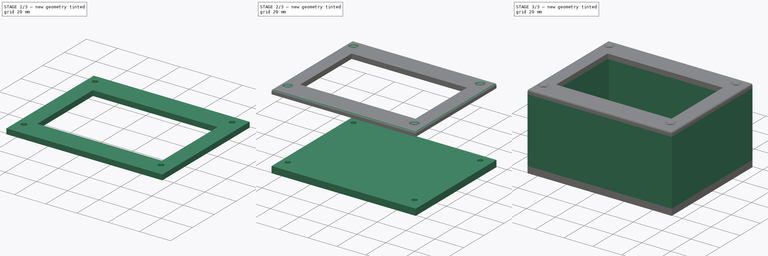
[diagram: build sequence overview — one tinted view per stage of 3, left to right]
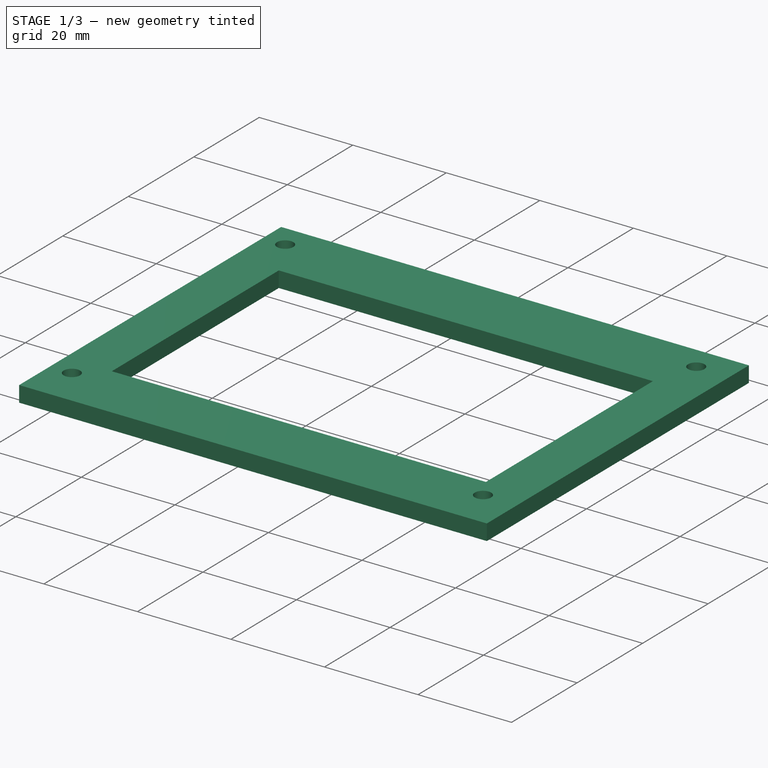
[diagram: stage 1 of 3 — iso view after this stage's code; geometry added in this stage tinted green]
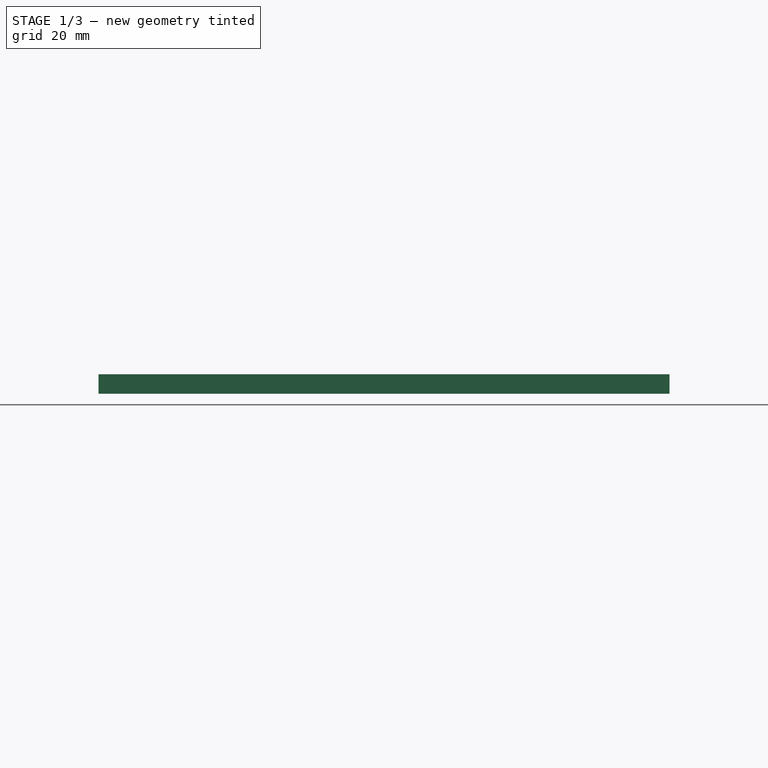
[diagram: stage 1 of 3 — front view after this stage's code; geometry added in this stage tinted green]
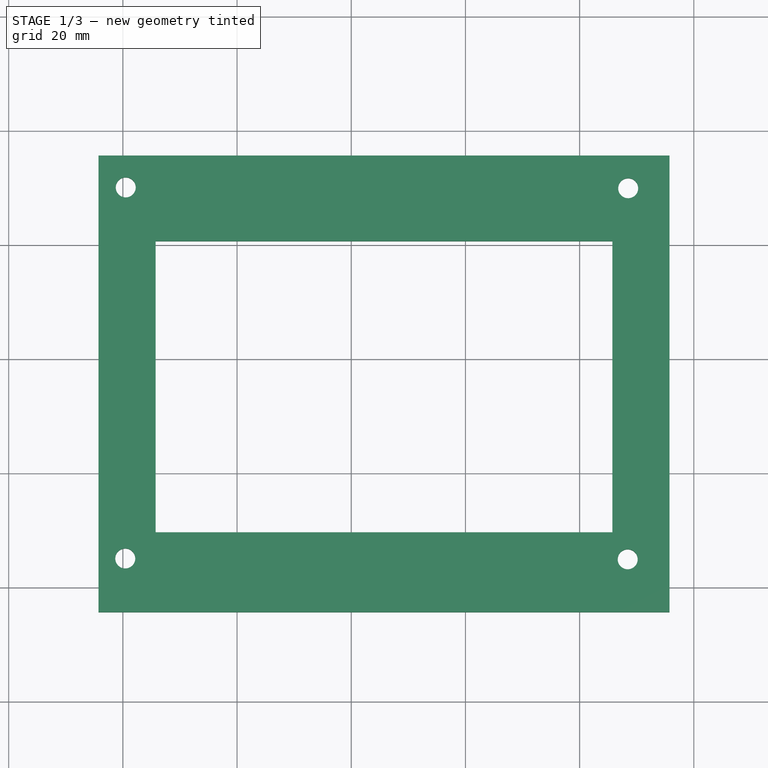
[diagram: stage 1 of 3 — top view after this stage's code; geometry added in this stage tinted green]
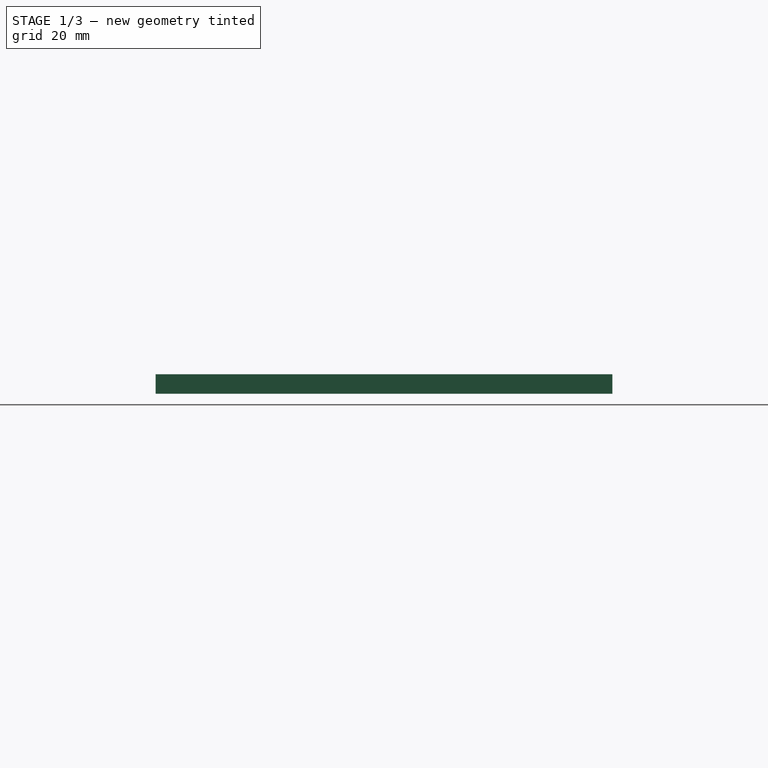
[diagram: stage 1 of 3 — right view after this stage's code; geometry added in this stage tinted green]
FCSTD DOCUMENT  (FreeCAD 0.18R4 (GitTag))
Label: Gabinete
License: All rights reserved
LicenseURL: http://en.wikipedia.org/wiki/All_rights_reserved
objects: Part::Feature×10, App::Part×10, Sketcher::SketchObject×4, PartDesign::Pad×3, PartDesign::Chamfer×2, PartDesign::Body×2, PartDesign::Pocket×1, PartDesign::Fillet×1
note: 27 computed .brp shape members not serialized (recipe doc carries the construction recipe); baked Part::Feature solids carry a one-line shape summary decoded from their .brp

FEATURE [PartDesign::Body] Body001  label="Cuerpo"
  Group = -> [Sketch004,Pad003,Chamfer001,Sketch003,Pad002]
  Origin = -> Origin001
  Tip = -> Pad002
FEATURE [PartDesign::Pad] Pad004
  Length = 3.4
  Length2 = 100
  Placement = pos=(0,0,49.5) rot=(0,0,1;0rad)
  Profile = -> Sketch002
  Type = 0
FEATURE [Sketcher::SketchObject] Sketch
  ExternalGeometry = -> [Pad004]
  MapMode = 5
  Placement = pos=(0,0,52.9) rot=(0,0,1;0rad)
  Support = -> [Pad004]
  sketch-geometry (4):
    g0: LineSegment StartX=-54.2662 StartY=20.6697 StartZ=0 EndX=25.7338 EndY=20.6697 EndZ=0
    g1: LineSegment StartX=25.7338 StartY=20.6697 StartZ=0 EndX=25.7338 EndY=-30.3303 EndZ=0
    g2: LineSegment StartX=25.7338 StartY=-30.3303 StartZ=0 EndX=-54.2662 EndY=-30.3303 EndZ=0
    g3: LineSegment StartX=-54.2662 StartY=-30.3303 StartZ=0 EndX=-54.2662 EndY=20.6697 EndZ=0
  constraints (12):
    c: Coincident(g0,g1)
    c: Coincident(g1,g2)
    c: Coincident(g2,g3)
    c: Coincident(g3,g0)
    c: Horizontal(g0)
    c: Horizontal(g2)
    c: Vertical(g1)
    c: Vertical(g3)
    c: Distance(g2) = 80
    c: Distance(g3) = 51
    c: DistanceX(g0,g-6) = 10
    c: DistanceY(g0,g-6) = 15
FEATURE [PartDesign::Pocket] Pocket
  BaseFeature = -> Pad004
  Length = 5
  Length2 = 100
  Placement = pos=(0,0,49.5) rot=(0,0,1;0rad)
  Profile = -> Sketch
  Type = 0
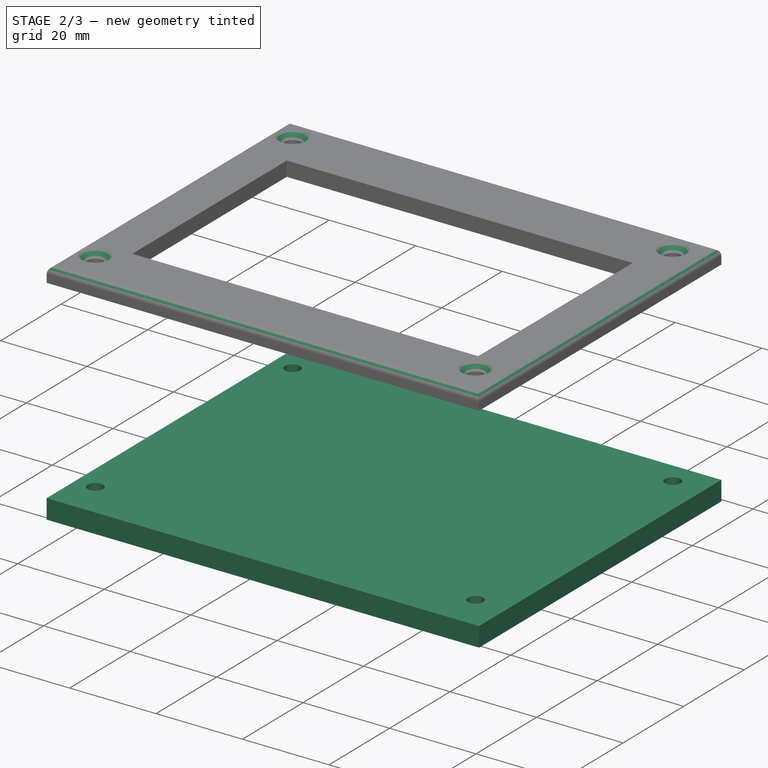
[diagram: stage 2 of 3 — iso view after this stage's code; geometry added in this stage tinted green]
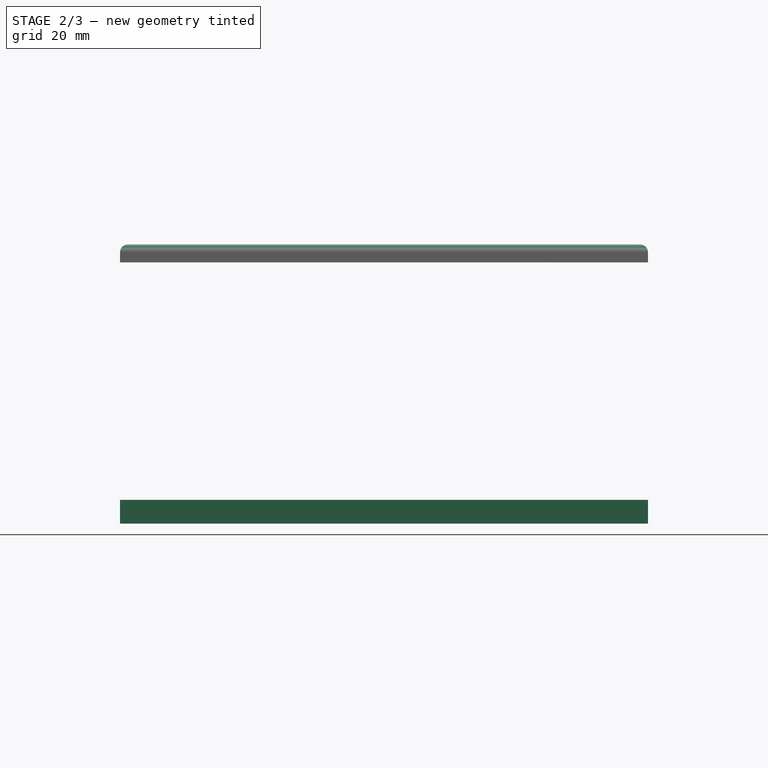
[diagram: stage 2 of 3 — front view after this stage's code; geometry added in this stage tinted green]
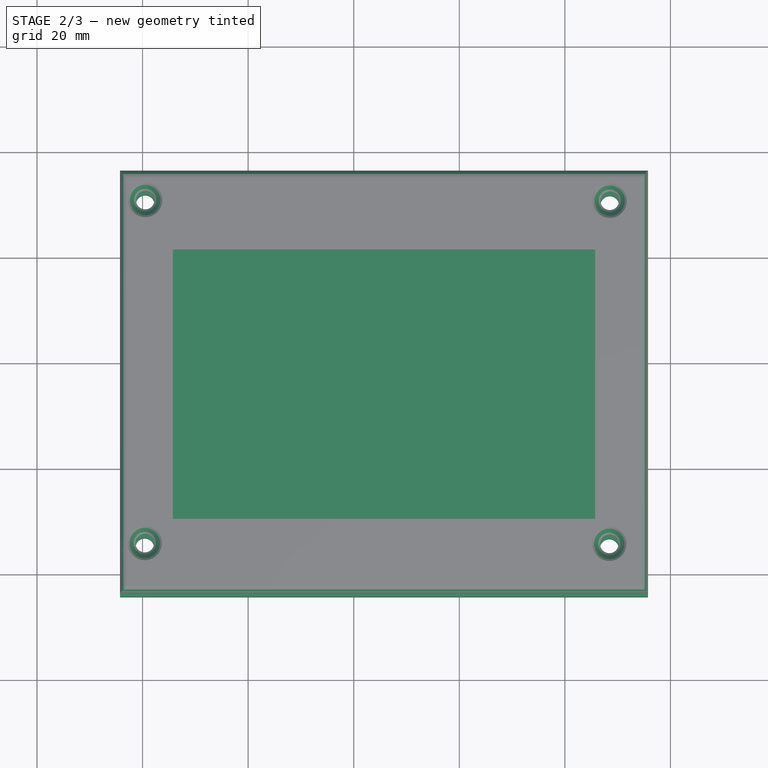
[diagram: stage 2 of 3 — top view after this stage's code; geometry added in this stage tinted green]
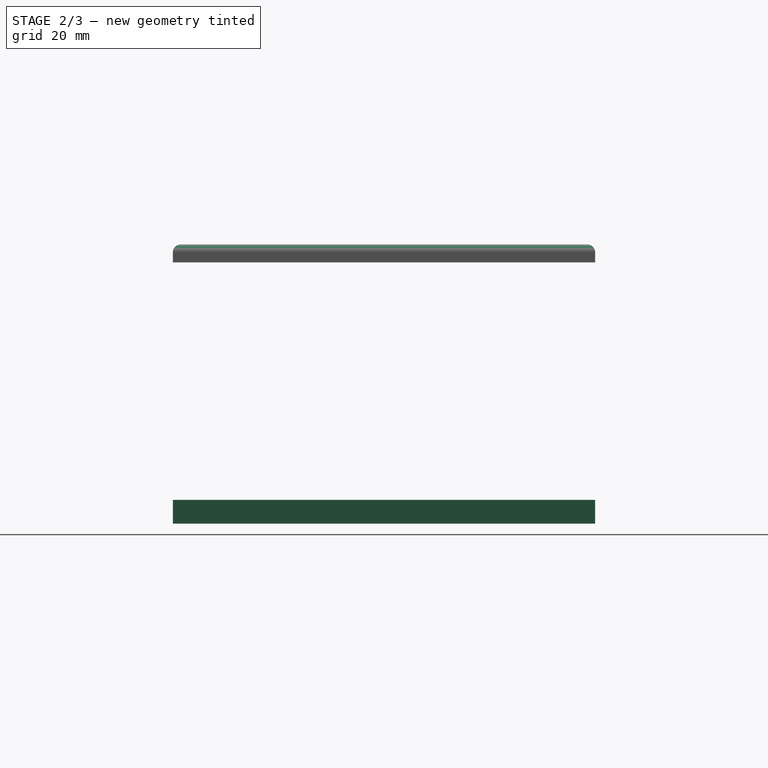
[diagram: stage 2 of 3 — right view after this stage's code; geometry added in this stage tinted green]
FEATURE [Sketcher::SketchObject] Sketch002
  MapMode = 5
  Placement = pos=(0,0,49.5) rot=(0,0,1;0rad)
  sketch-geometry (8):
    g0: LineSegment StartX=-64.2662 StartY=35.6697 StartZ=0 EndX=35.7338 EndY=35.6697 EndZ=0
    g1: LineSegment StartX=35.7338 StartY=35.6697 StartZ=0 EndX=35.7338 EndY=-44.3303 EndZ=0
    g2: LineSegment StartX=35.7338 StartY=-44.3303 StartZ=0 EndX=-64.2662 EndY=-44.3303 EndZ=0
    g3: LineSegment StartX=-64.2662 StartY=-44.3303 StartZ=0 EndX=-64.2662 EndY=35.6697 EndZ=0
    g4: Circle CenterX=-59.4993 CenterY=30.084 CenterZ=0 NormalX=0 NormalY=0 NormalZ=1 AngleXU=0 Radius=1.75
    g5: Circle CenterX=-59.5841 CenterY=-34.9159 CenterZ=0 NormalX=0 NormalY=0 NormalZ=1 AngleXU=0 Radius=1.75
    g6: Circle CenterX=28.5007 CenterY=29.9374 CenterZ=0 NormalX=0 NormalY=0 NormalZ=1 AngleXU=0 Radius=1.75
    g7: Circle CenterX=28.4159 CenterY=-35.0625 CenterZ=0 NormalX=0 NormalY=0 NormalZ=1 AngleXU=0 Radius=1.75
  constraints (12):
    c: Coincident(g0,g1)
    c: Coincident(g1,g2)
    c: Coincident(g2,g3)
    c: Coincident(g3,g0)
    c: Horizontal(g0)
    c: Horizontal(g2)
    c: Vertical(g1)
    c: Vertical(g3)
    c: Radius(g4) = 1.75
    c: Equal(g4,g5) = 1.75
    c: Equal(g4,g6) = 1.75
    c: Equal(g6,g7) = 1.75
FEATURE [Sketcher::SketchObject] Sketch004
  MapMode = 5
  Support = -> [XY_Plane001]
  sketch-geometry (8):
    g0: LineSegment StartX=-64.2662 StartY=35.6697 StartZ=0 EndX=35.7338 EndY=35.6697 EndZ=0
    g1: LineSegment StartX=35.7338 StartY=35.6697 StartZ=0 EndX=35.7338 EndY=-44.3303 EndZ=0
    g2: LineSegment StartX=35.7338 StartY=-44.3303 StartZ=0 EndX=-64.2662 EndY=-44.3303 EndZ=0
    g3: LineSegment StartX=-64.2662 StartY=-44.3303 StartZ=0 EndX=-64.2662 EndY=35.6697 EndZ=0
    g4: Circle CenterX=-59.4993 CenterY=30.084 CenterZ=0 NormalX=0 NormalY=0 NormalZ=1 AngleXU=0 Radius=1.75
    g5: Circle CenterX=28.5007 CenterY=29.9374 CenterZ=0 NormalX=0 NormalY=0 NormalZ=1 AngleXU=0 Radius=1.75
    g6: Circle CenterX=-59.5841 CenterY=-34.9159 CenterZ=0 NormalX=0 NormalY=0 NormalZ=1 AngleXU=0 Radius=1.75
    g7: Circle CenterX=28.4159 CenterY=-35.0625 CenterZ=0 NormalX=0 NormalY=0 NormalZ=1 AngleXU=0 Radius=1.75
  constraints (18):
    c: Coincident(g0,g1)
    c: Coincident(g1,g2)
    c: Coincident(g2,g3)
    c: Coincident(g3,g0)
    c: Horizontal(g0)
    c: Horizontal(g2)
    c: Vertical(g1)
    c: Vertical(g3)
    c: Distance(g2) = 100
    c: Distance(g1) = 80
    c: DistanceX(g4,g5) = 88
    c: Radius(g4) = 1.75
    c: Radius(g5) = 1.75
    c: DistanceX(g6,g7) = 88
    c: Equal(g4,g6) = 1.75
    c: Equal(g5,g7) = 1.75
    c: Distance(g5,g7) = 65
    c: Distance(g4,g6) = 65
FEATURE [PartDesign::Pad] Pad003
  Length = 4.5
  Length2 = 100
  Profile = -> Sketch004
  Type = 0
FEATURE [PartDesign::Chamfer] Chamfer
  Base = -> Pocket [Edge21,Edge26,Edge27,Edge28]
  BaseFeature = -> Pocket
  Placement = pos=(0,0,49.5) rot=(0,0,1;0rad)
  Size = 1.5
FEATURE [PartDesign::Fillet] Fillet
  Base = -> Chamfer [Edge3,Edge5,Edge4,Edge2]
  BaseFeature = -> Chamfer
  Placement = pos=(0,0,49.5) rot=(0,0,1;0rad)
  Radius = 1.5
FEATURE [PartDesign::Body] Body  label="Tapa"
  Group = -> [Sketch002,Pad004,Sketch,Pocket,Chamfer,Fillet]
  Origin = -> Origin
  Tip = -> Fillet
FEATURE [Part::Feature] Part__Feature  label="SOLID"
  shape: bbox 2.54 x 7.62 x 11.54 mm, 76 faces (baked)
FEATURE [App::Part] PinHeader_1x03_P2_54mm_Vertical  label="PinHeader_1x03_P2.54mm_Vertical"
  Group = -> [Part__Feature]
  Origin = -> Origin002
  Placement = pos=(134.62,-113.03,1.65) rot=(0,0,-1;1.5708rad)
FEATURE [Part::Feature] Part__Feature001  label="SOLID001"
  shape: bbox 29.3 x 24.64 x 13.25 mm, 71 faces (baked)
FEATURE [App::Part] BatteryHolder_Keystone_103_1x20mm
  Group = -> [Part__Feature001]
  Origin = -> Origin003
  Placement = pos=(135.89,-83.82,1.65) rot=(0,0,1;1.5708rad)
FEATURE [Part::Feature] Part__Feature002  label="SOLID002"
  shape: bbox 10.36 x 7.62 x 5.54 mm, 85 faces (baked)
FEATURE [App::Part] PinHeader_1x03_P2_54mm_Horizontal  label="PinHeader_1x03_P2.54mm_Horizontal"
  Group = -> [Part__Feature002]
  Origin = -> Origin004
  Placement = pos=(147.32,-113.03,1.65) rot=(0,0,-1;1.5708rad)
FEATURE [Part::Feature] Part__Feature003  label="SOLID003"
  shape: bbox 10.96 x 2.706 x 5.603 mm, 17 faces (baked)
FEATURE [App::Part] R_Axial_DIN0207_L6_3mm_D2_5mm_P10_16mm_Horizontal  label="R_Axial_DIN0207_L6.3mm_D2.5mm_P10.16mm_Horizontal"
  Group = -> [Part__Feature003]
  Origin = -> Origin005
  Placement = pos=(124.46,-116.84,1.65) rot=(0,0,1;0rad)
FEATURE [Part::Feature] Part__Feature004  label="SOLID004"
  shape: bbox 2.54 x 50.8 x 11.54 mm, 484 faces (baked)
FEATURE [App::Part] PinHeader_1x20_P2_54mm_Vertical  label="PinHeader_1x20_P2.54mm_Vertical"
  Group = -> [Part__Feature004]
  Origin = -> Origin006
  Placement = pos=(123.19,-55.88,1.65) rot=(0,0,1;1.5708rad)
FEATURE [Part::Feature] Part__Feature005  label="SOLID005"
  shape: bbox 2.54 x 15.24 x 11.54 mm, 148 faces (baked)
FEATURE [App::Part] PinHeader_1x06_P2_54mm_Vertical  label="PinHeader_1x06_P2.54mm_Vertical"
  Group = -> [Part__Feature005]
  Origin = -> Origin007
  Placement = pos=(160.02,-78.74,1.65) rot=(0,0,1;3.14159rad)
FEATURE [Part::Feature] Part__Feature006  label="SOLID006"
  shape: bbox 10.36 x 20.32 x 5.54 mm, 220 faces (baked)
FEATURE [App::Part] PinHeader_1x08_P2_54mm_Horizontal  label="PinHeader_1x08_P2.54mm_Horizontal"
  Group = -> [Part__Feature006]
  Origin = -> Origin008
  Placement = pos=(170.18,-113.03,1.65) rot=(0,0,-1;1.5708rad)
FEATURE [Part::Feature] Part__Feature007  label="SOLID007"
  shape: bbox 12.99 x 12.99 x 12.53 mm, 13 faces (baked)
FEATURE [App::Part] Buzzer_12x9_5RM7_6  label="Buzzer_12x9.5RM7.6"
  Group = -> [Part__Feature007]
  Origin = -> Origin009
  Placement = pos=(106.68,-118.11,1.65) rot=(0,0,1;0rad)
FEATURE [Part::Feature] Part__Feature008  label="SOLID008"
  shape: bbox 4.83 x 3.745 x 9.8 mm, 19 faces (baked)
FEATURE [App::Part] TO_92_Inline  label="TO-92_Inline"
  Group = -> [Part__Feature008]
  Origin = -> Origin010
  Placement = pos=(120.65,-119.38,1.65) rot=(0,0,1;1.5708rad)
FEATURE [Part::Feature] Part__Feature009  label="COMPOUND"
  shape: bbox 98 x 75 x 1.6 mm, 105 faces (baked)
FEATURE [App::Part] Open_CASCADE_STEP_translator_6_9_1  label="Open CASCADE STEP translator 6.9 1"
  Group = -> [PinHeader_1x03_P2_54mm_Vertical,BatteryHolder_Keystone_103_1x20mm,PinHeader_1x03_P2_54mm_Horizontal,R_Axial_DIN0207_L6_3mm_D2_5mm_P10_16mm_Horizontal,PinHeader_1x20_P2_54mm_Vertical,PinHeader_1x06_P2_54mm_Vertical,PinHeader_1x08_P2_54mm_Horizontal,Buzzer_12x9_5RM7_6,TO_92_Inline,Part__Feature009]
  Origin = -> Origin011
  Placement = pos=(-153,84,17) rot=(0,0,1;0rad)
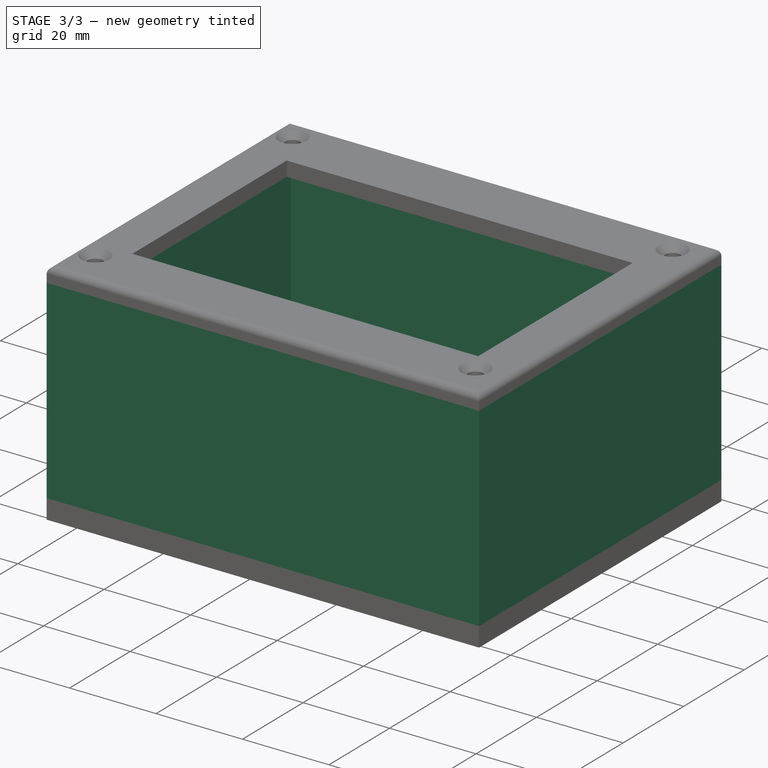
[diagram: stage 3 of 3 — iso view after this stage's code; geometry added in this stage tinted green]
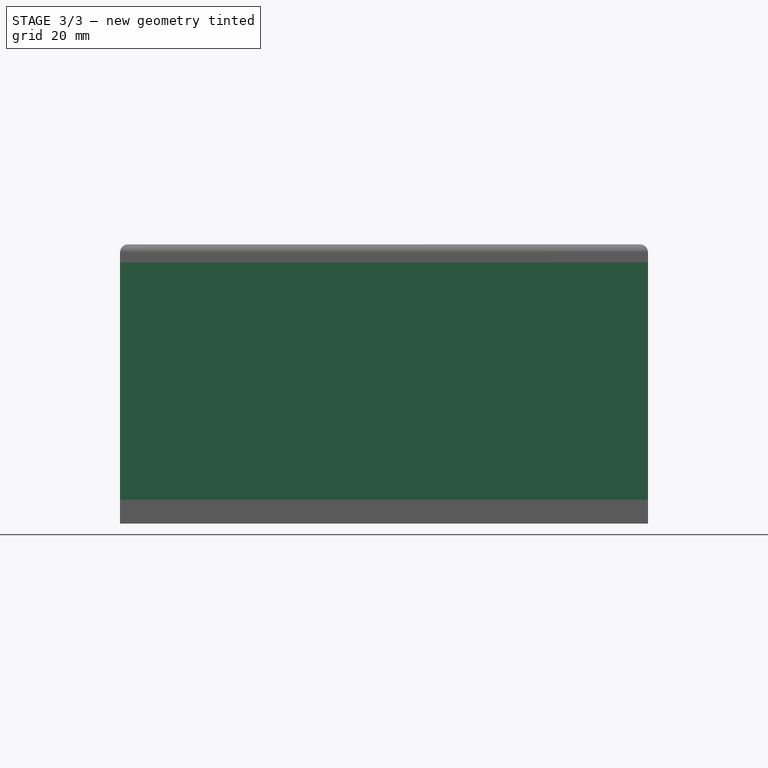
[diagram: stage 3 of 3 — front view after this stage's code; geometry added in this stage tinted green]
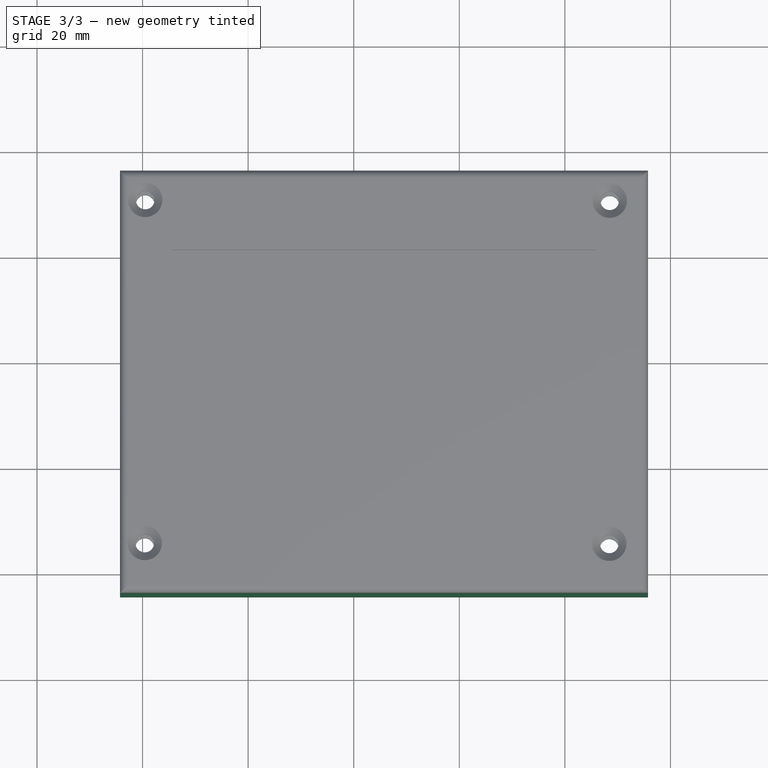
[diagram: stage 3 of 3 — top view after this stage's code; geometry added in this stage tinted green]
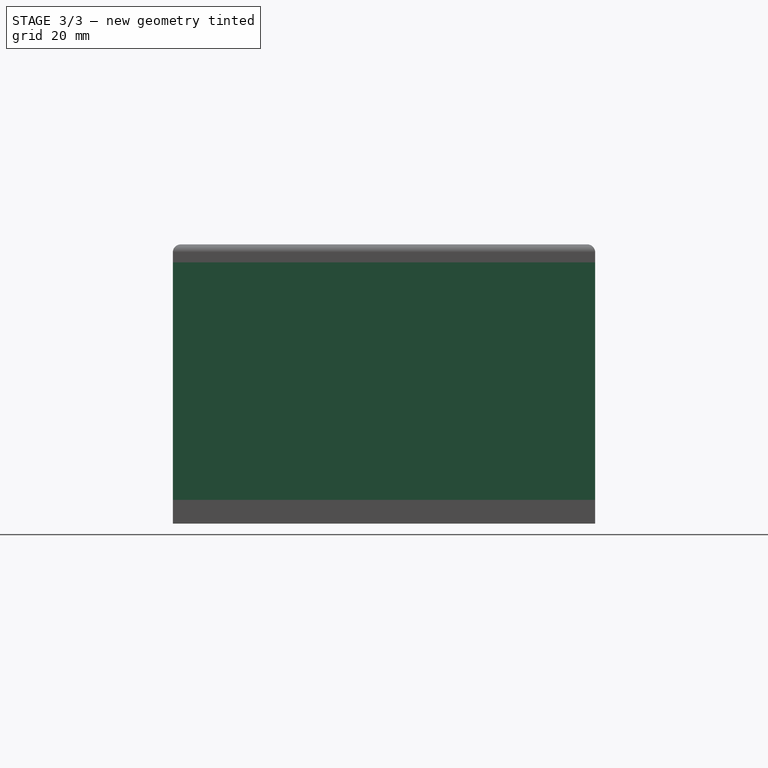
[diagram: stage 3 of 3 — right view after this stage's code; geometry added in this stage tinted green]
FEATURE [PartDesign::Chamfer] Chamfer001
  Base = -> Pad003 [Edge17,Edge14,Edge20,Edge23]
  BaseFeature = -> Pad003
  Size = 1.5
FEATURE [Sketcher::SketchObject] Sketch003
  ExternalGeometry = -> [Chamfer001]
  MapMode = 5
  Placement = pos=(0,0,4.5) rot=(0,0,1;0rad)
  Support = -> [Chamfer001]
  sketch-geometry (8):
    g0: LineSegment StartX=-64.2662 StartY=35.6697 StartZ=0 EndX=35.7338 EndY=35.6697 EndZ=0
    g1: LineSegment StartX=35.7338 StartY=35.6697 StartZ=0 EndX=35.7338 EndY=-44.3303 EndZ=0
    g2: LineSegment StartX=35.7338 StartY=-44.3303 StartZ=0 EndX=-64.2662 EndY=-44.3303 EndZ=0
    g3: LineSegment StartX=-64.2662 StartY=-44.3303 StartZ=0 EndX=-64.2662 EndY=35.6697 EndZ=0
    g4: LineSegment StartX=-62.7662 StartY=34.1697 StartZ=0 EndX=34.2338 EndY=34.1697 EndZ=0
    g5: LineSegment StartX=34.2338 StartY=34.1697 StartZ=0 EndX=34.2338 EndY=-42.8303 EndZ=0
    g6: LineSegment StartX=34.2338 StartY=-42.8303 StartZ=0 EndX=-62.7662 EndY=-42.8303 EndZ=0
    g7: LineSegment StartX=-62.7662 StartY=-42.8303 StartZ=0 EndX=-62.7662 EndY=34.1697 EndZ=0
  constraints (21):
    c: Coincident(g0,g1)
    c: Coincident(g1,g2)
    c: Coincident(g2,g3)
    c: Coincident(g3,g0)
    c: Horizontal(g0)
    c: Vertical(g3)
    c: Coincident(g4,g5)
    c: Coincident(g5,g6)
    c: Coincident(g6,g7)
    c: Coincident(g7,g4)
    c: Horizontal(g4)
    c: Horizontal(g6)
    c: Vertical(g5)
    c: Vertical(g7)
    c: Coincident(g0,g-5)
    c: Coincident(g1,g-6)
    c: Coincident(g2,g-6)
    c: DistanceY(g7,g7) = 77
    c: DistanceY(g4,g0) = 1.5
    c: DistanceX(g4,g4) = 97
    c: DistanceX(g4,g0) = 1.5
FEATURE [PartDesign::Pad] Pad002
  BaseFeature = -> Chamfer001
  Length = 45
  Length2 = 100
  Profile = -> Sketch003
  Type = 0
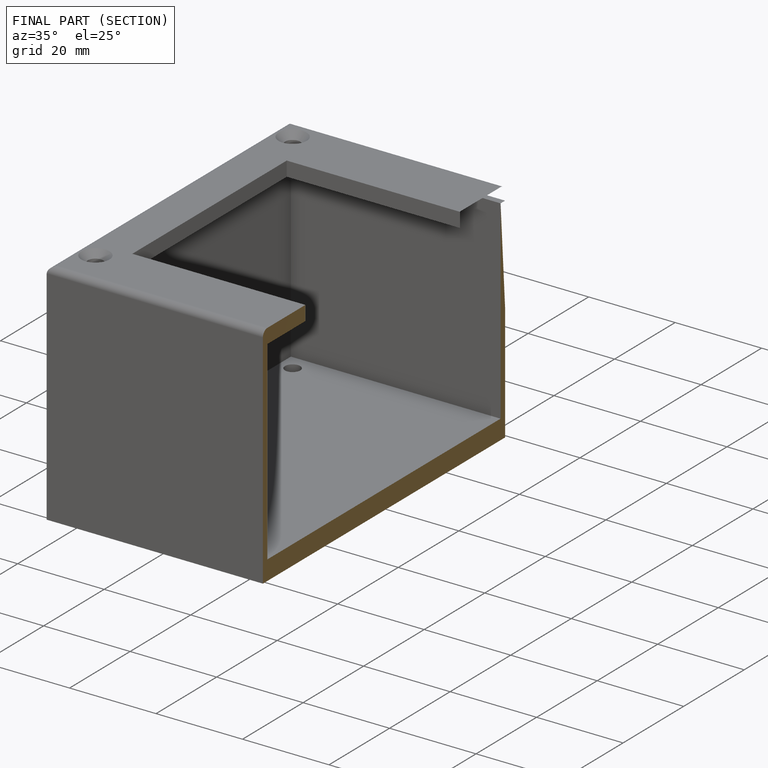
[diagram: finished part — half-section view (interior)]
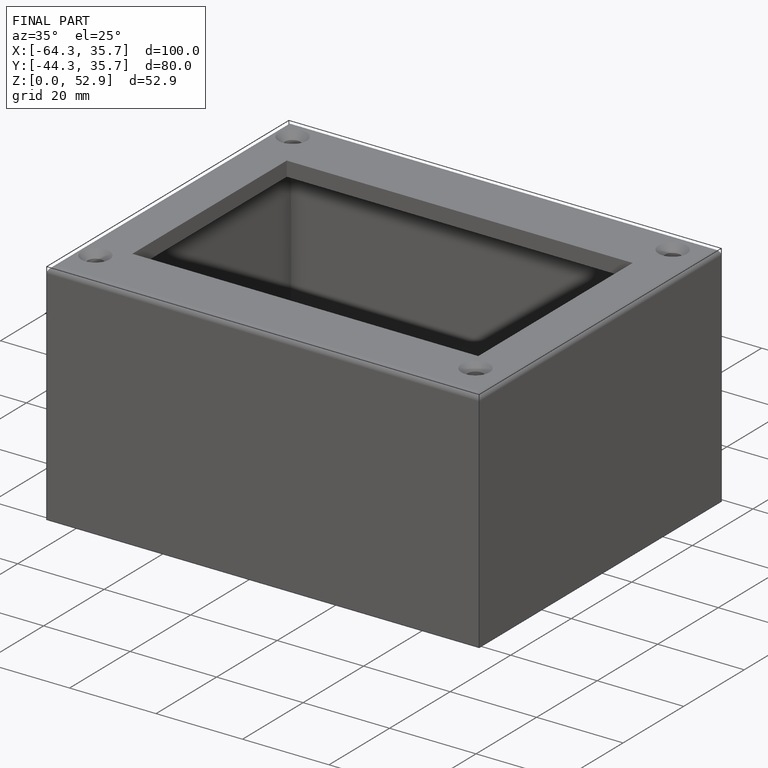
[diagram: finished part — iso view with bounding-box wireframe]
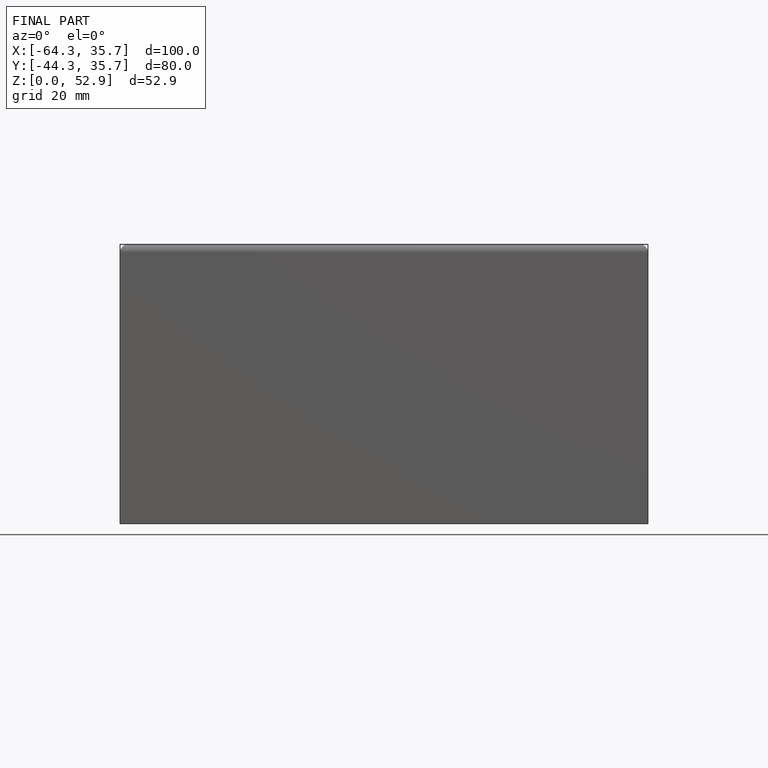
[diagram: finished part — front view with bounding-box wireframe]
